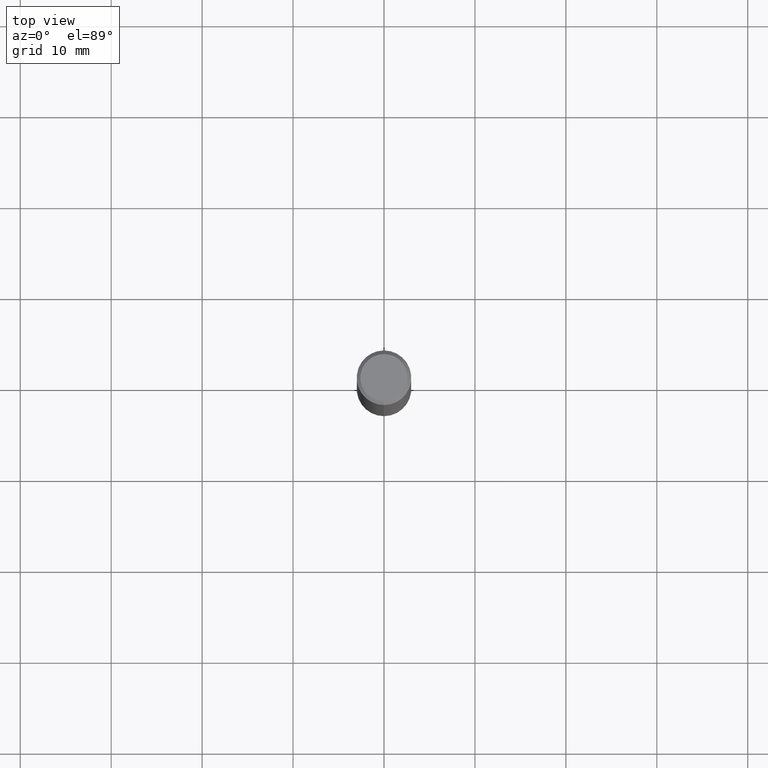
[diagram: clean part render]
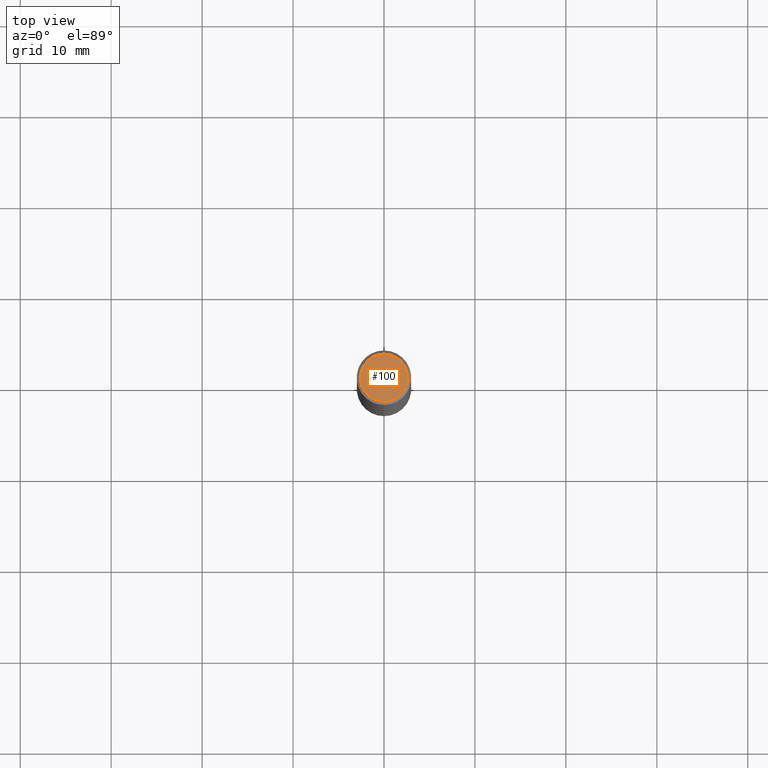
[diagram: same view with one face highlighted and labeled with its STEP entity id]
A machine part, top view. The second image highlights one B-rep face of the part: STEP entity #100.
In plain terms, the highlighted planar face has unit normal (-0, 0, 1).
Its self-contained STEP definition (entity closure, byte-faithful):
#100=ADVANCED_FACE('',(#227),#228,.T.);
#108=EDGE_CURVE('',#122,#168,#236,.T.);
#122=VERTEX_POINT('',#253);
#148=EDGE_CURVE('',#168,#122,#283,.T.);
#168=VERTEX_POINT('',#306);
#227=FACE_OUTER_BOUND('',#363,.T.);
#228=PLANE('',#364);
#236=CIRCLE('',#377,2.6);
#253=CARTESIAN_POINT('',(3.18397651993818E-016,-2.6,0.0));
#283=CIRCLE('',#431,2.6);
#306=CARTESIAN_POINT('',(0.0,2.6,0.0));
#363=EDGE_LOOP('',(#522,#523));
#364=AXIS2_PLACEMENT_3D('',#524,#525,#526);
#377=AXIS2_PLACEMENT_3D('',#529,#530,#531);
#431=AXIS2_PLACEMENT_3D('',#593,#594,#595);
#522=ORIENTED_EDGE('',*,*,#148,.F.);
#523=ORIENTED_EDGE('',*,*,#108,.F.);
#524=CARTESIAN_POINT('',(0.0,1.3,0.0));
#525=DIRECTION('',(-0.0,0.0,1.0));
#526=DIRECTION('',(0.0,-1.0,0.0));
#529=CARTESIAN_POINT('',(0.0,0.0,0.0));
#530=DIRECTION('',(0.0,0.0,-1.0));
#531=DIRECTION('',(0.0,1.0,0.0));
#593=CARTESIAN_POINT('',(0.0,0.0,0.0));
#594=DIRECTION('',(0.0,0.0,-1.0));
#595=DIRECTION('',(0.0,1.0,0.0));